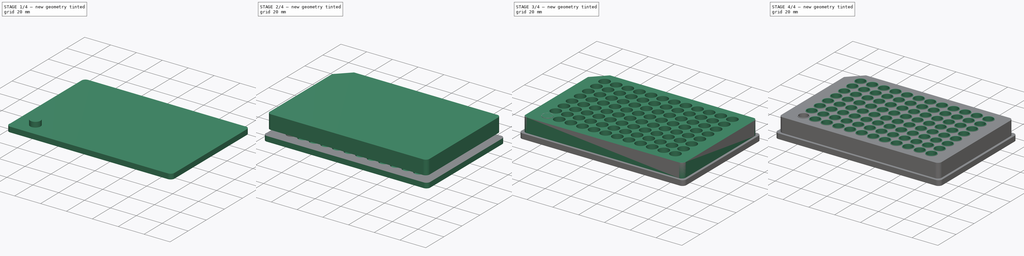
[diagram: build sequence overview — one tinted view per stage of 4, left to right]
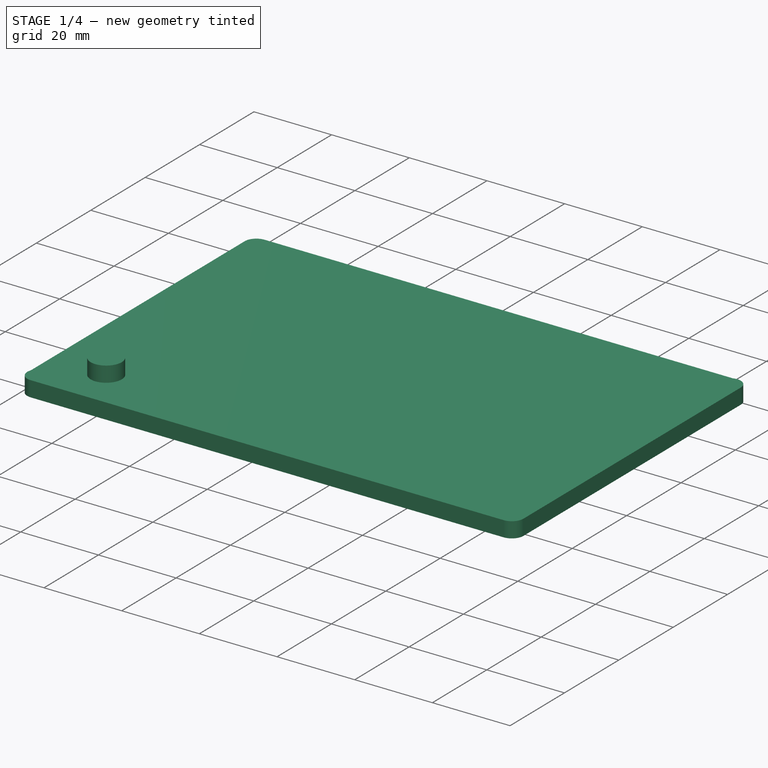
[diagram: stage 1 of 4 — iso view after this stage's code; geometry added in this stage tinted green]
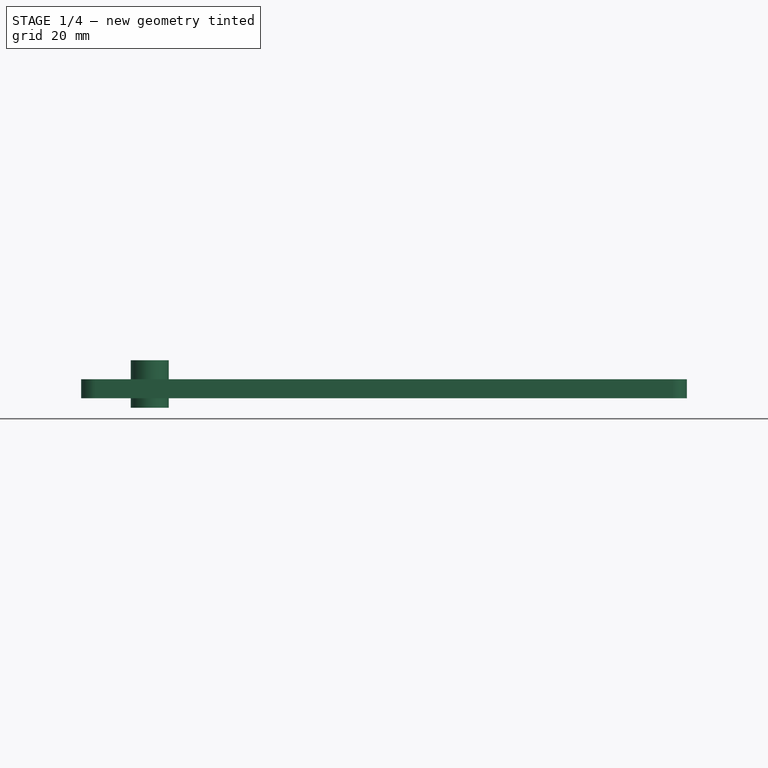
[diagram: stage 1 of 4 — front view after this stage's code; geometry added in this stage tinted green]
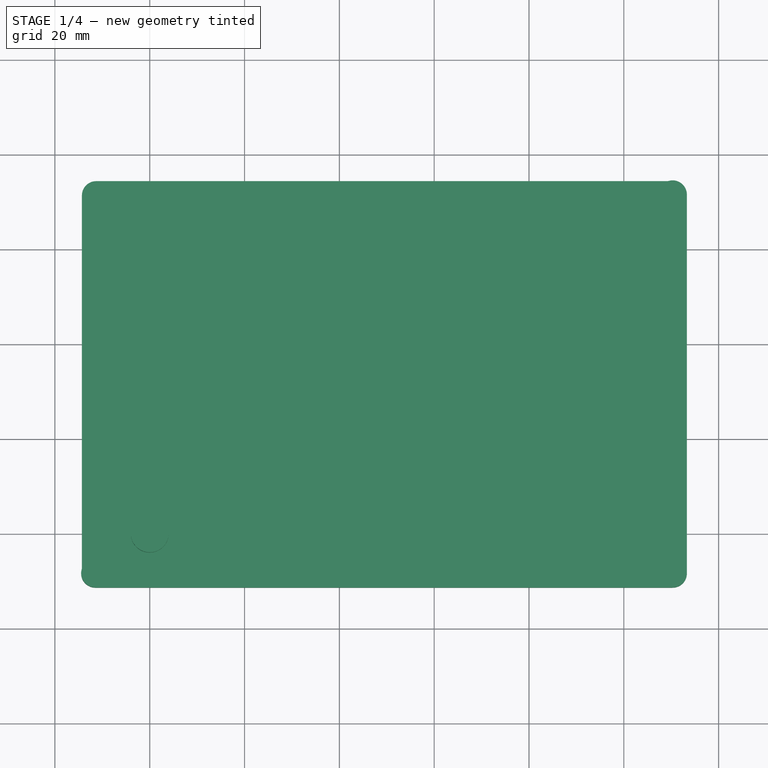
[diagram: stage 1 of 4 — top view after this stage's code; geometry added in this stage tinted green]
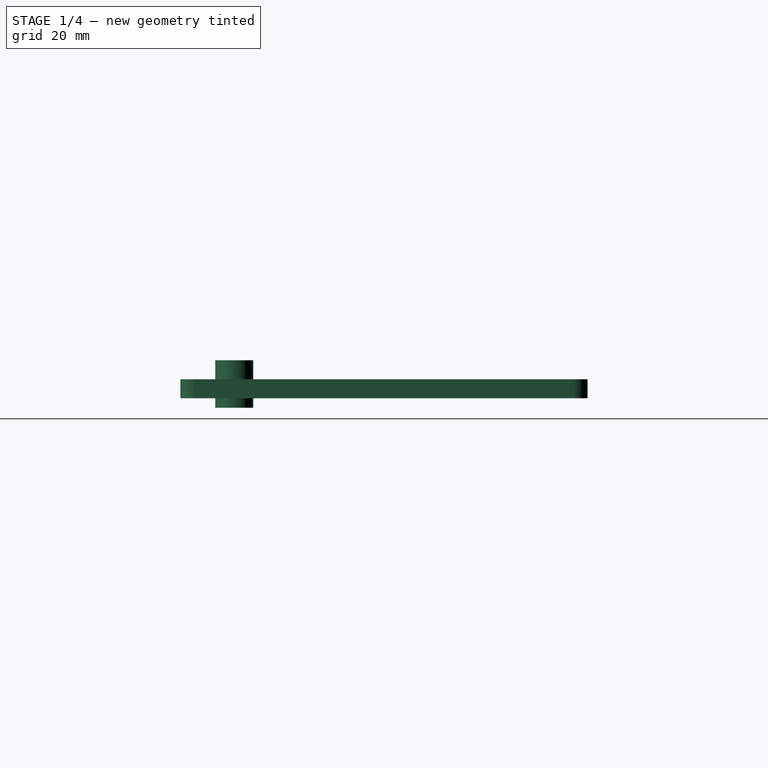
[diagram: stage 1 of 4 — right view after this stage's code; geometry added in this stage tinted green]
FCSTD DOCUMENT  (FreeCAD 0.20R29410 (Git))
Label: 96 well plate
License: All rights reserved
LicenseURL: http://en.wikipedia.org/wiki/All_rights_reserved
objects: Sketcher::SketchObject×4, Part::FeaturePython×4, PartDesign::Body×3, Part::Cylinder×3, Part::Cut×3, PartDesign::Pad×2, TechDraw::DrawSVGTemplate×2, TechDraw::DrawViewPart×2, TechDraw::DrawPage×2, PartDesign::AdditiveLoft×1, Part::Compound×1
note: 20 computed .brp shape members not serialized (recipe doc carries the construction recipe); baked Part::Feature solids carry a one-line shape summary decoded from their .brp

FEATURE [Sketcher::SketchObject] Sketch
  FullyConstrained = false
  MapMode = 5
  Support = -> [XY_Plane]
  sketch-geometry (25):
    g0: LineSegment StartX=0 StartY=0 StartZ=0 EndX=0 EndY=-11.36 EndZ=0
    g1: LineSegment StartX=0 StartY=0 StartZ=0 EndX=-14.3 EndY=0 EndZ=0
    g2: LineSegment StartX=0 StartY=-11.36 StartZ=0 EndX=-14.3 EndY=-11.36 EndZ=0
    g3: LineSegment StartX=-14.3 StartY=-11.36 StartZ=0 EndX=-14.3 EndY=0 EndZ=0
    g4: LineSegment StartX=-14.3 StartY=0 StartZ=0 EndX=-14.3 EndY=74.36 EndZ=0
    g5: LineSegment StartX=-14.3 StartY=74.36 StartZ=0 EndX=113.3 EndY=74.36 EndZ=0
    g6: LineSegment StartX=113.3 StartY=74.36 StartZ=0 EndX=113.3 EndY=-11.36 EndZ=0
    g7: LineSegment StartX=113.3 StartY=-11.36 StartZ=0 EndX=0 EndY=-11.36 EndZ=0
    g8: LineSegment StartX=0 StartY=0 StartZ=0 EndX=0 EndY=63 EndZ=0
    g9: LineSegment StartX=0 StartY=63 StartZ=0 EndX=99 EndY=63 EndZ=0
    g10: LineSegment StartX=99 StartY=63 StartZ=0 EndX=113.3 EndY=63 EndZ=0
    g11: LineSegment StartX=99 StartY=63 StartZ=0 EndX=99 EndY=74.36 EndZ=0
    g12: LineSegment StartX=-14.3 StartY=64.36 StartZ=0 EndX=-4.3 EndY=74.36 EndZ=0
    g13: LineSegment StartX=113.3 StartY=71.5303 StartZ=0 EndX=113.3 EndY=-8.36 EndZ=0
    g14: LineSegment StartX=110.3 StartY=-11.36 StartZ=0 EndX=-11.4703 EndY=-11.36 EndZ=0
    g15: ArcOfCircle CenterX=110.3 CenterY=71.5303 CenterZ=0 NormalX=0 NormalY=0 NormalZ=1 AngleXU=0 Radius=3 StartAngle=-9e-16 EndAngle=1.90934
    g16: GeomPoint X=113.3 Y=74.36 Z=0
    g17: ArcOfCircle CenterX=110.3 CenterY=-8.36 CenterZ=0 NormalX=0 NormalY=0 NormalZ=1 AngleXU=0 Radius=3 StartAngle=4.71239 EndAngle=6.28319
    g18: GeomPoint X=113.3 Y=-11.36 Z=0
    g19: ArcOfCircle CenterX=-11.4703 CenterY=-8.36 CenterZ=0 NormalX=0 NormalY=0 NormalZ=1 AngleXU=0 Radius=3 StartAngle=2.80305 EndAngle=4.71239
    g20: GeomPoint X=-14.3 Y=-11.36 Z=0
    g21: LineSegment StartX=109.304 StartY=74.36 StartZ=0 EndX=-11.3 EndY=74.36 EndZ=0
    g22: LineSegment StartX=-14.3 StartY=71.36 StartZ=0 EndX=-14.3 EndY=-7.36366 EndZ=0
    g23: ArcOfCircle CenterX=-11.3 CenterY=71.36 CenterZ=0 NormalX=0 NormalY=0 NormalZ=1 AngleXU=0 Radius=3 StartAngle=1.5708 EndAngle=3.14159
    g24: GeomPoint X=-14.3 Y=74.36 Z=0
  constraints (62):
    c: Coincident(g0,g-1)
    c: PointOnObject(g0,g-2)
    c: Coincident(g1,g0)
    c: PointOnObject(g1,g-1)
    c: DistanceX(g1,g1) = 14.3
    c: DistanceY(g0,g0) = 11.36
    c: Coincident(g2,g0)
    c: Horizontal(g2)
    c: Coincident(g3,g2)
    c: Coincident(g3,g1)
    c: Vertical(g3)
    c: Coincident(g4,g1)
    c: Vertical(g4)
    c: Coincident(g5,g4)
    c: Horizontal(g5)
    c: Coincident(g6,g5)
    c: Vertical(g6)
    c: Coincident(g7,g6)
    c: Coincident(g7,g0)
    c: Horizontal(g7)
    c: Coincident(g8,g0)
    c: PointOnObject(g8,g-2)
    c: DistanceY(g8,g8) = 63
    c: Coincident(g9,g8)
    c: Horizontal(g9)
    c: DistanceX(g9,g9) = 99
    c: Coincident(g10,g9)
    c: PointOnObject(g10,g6)
    c: Horizontal(g10)
    c: Coincident(g11,g9)
    c: PointOnObject(g11,g5)
    c: Vertical(g11)
    c: Equal(g11,g0)
    c: Equal(g10,g1)
    c: PointOnObject(g12,g4)
    c: PointOnObject(g12,g5)
    c: Angle(g12,g5) = 2.35619
    c: DistanceX(g4,g12) = 10
    c: Coincident(g16,g5)
    c: Coincident(g18,g6)
    c: Coincident(g20,g2)
    c: PointOnObject(g16,g13)
    c: Tangent(g13,g15) = 1.5708
    c: PointOnObject(g18,g13)
    c: PointOnObject(g18,g14)
    c: Tangent(g13,g17) = 1.5708
    c: Tangent(g14,g17) = 1.5708
    c: PointOnObject(g20,g14)
    c: Tangent(g14,g19) = 1.5708
    c: Equal(g15,g17)
    c: Equal(g17,g19)
    c: Radius(g15) = 3
    c: Coincident(g21,g15)
    c: Coincident(g24,g4)
    c: Horizontal(g21)
    c: Coincident(g22,g19)
    c: Vertical(g22)
    c: PointOnObject(g24,g22)
    c: PointOnObject(g24,g21)
    c: Tangent(g22,g23) = -1.5708
    c: Tangent(g21,g23) = -1.5708
    c: Equal(g23,g15)
FEATURE [PartDesign::Pad] Pad
  Direction = (0,0,1)
  Length = 4
  Length2 = 10
  Profile = -> Sketch
  ReferenceAxis = -> Sketch [N_Axis]
  Type = 0
FEATURE [PartDesign::Body] Body  label="Plate base"
  Group = -> [Sketch,Pad]
  Origin = -> Origin
  Placement = pos=(0,0,-4) rot=(0,0,1;0rad)
  Tip = -> Pad
FEATURE [Part::Cylinder] Cylinder
  Angle = 360
  AttacherType = Attacher::AttachEngine3D
  FirstAngle = 0
  Height = 10
  Placement = pos=(0,0,-2) rot=(0,0,1;0rad)
  Radius = 4
  SecondAngle = 0
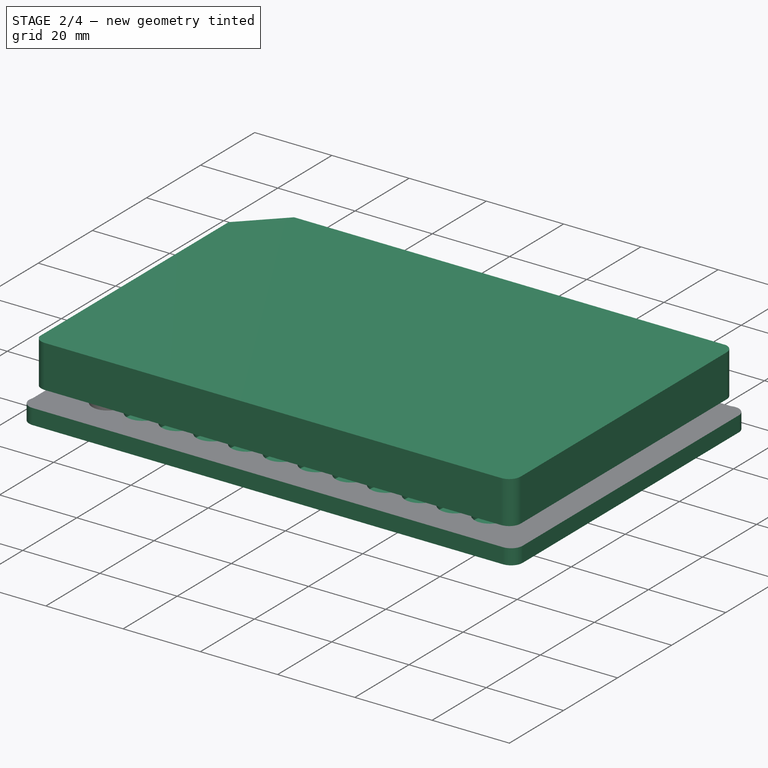
[diagram: stage 2 of 4 — iso view after this stage's code; geometry added in this stage tinted green]
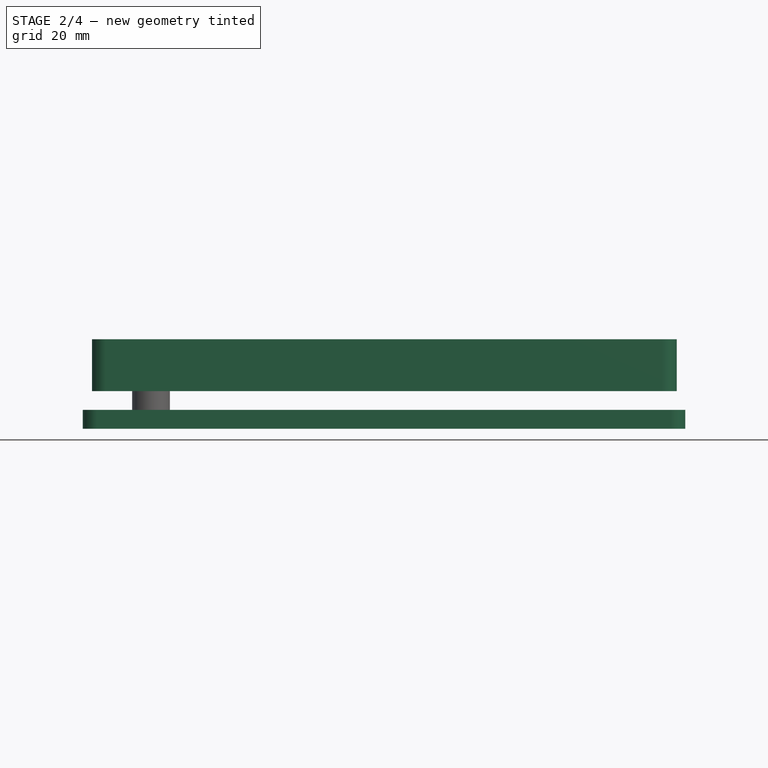
[diagram: stage 2 of 4 — front view after this stage's code; geometry added in this stage tinted green]
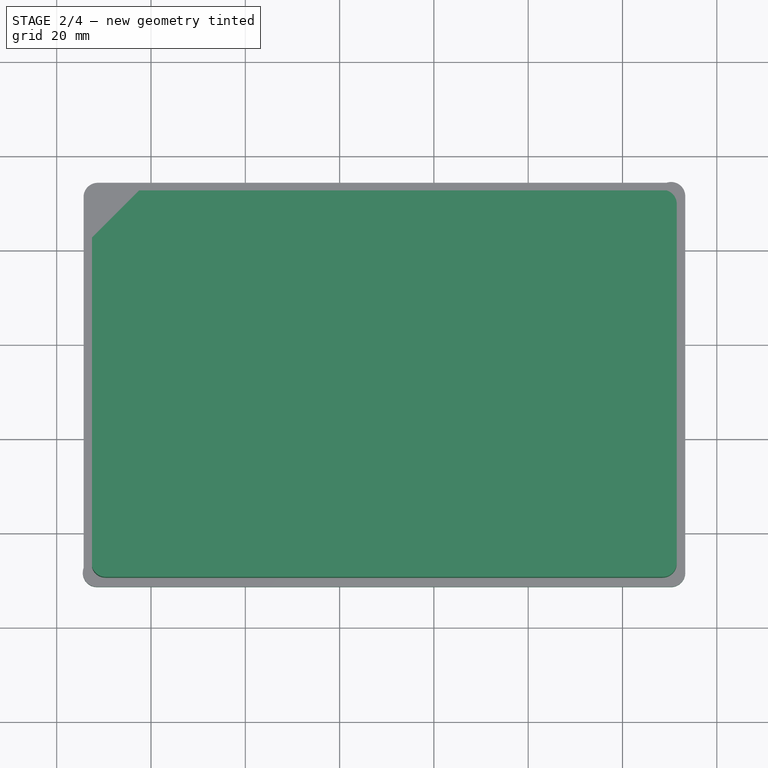
[diagram: stage 2 of 4 — top view after this stage's code; geometry added in this stage tinted green]
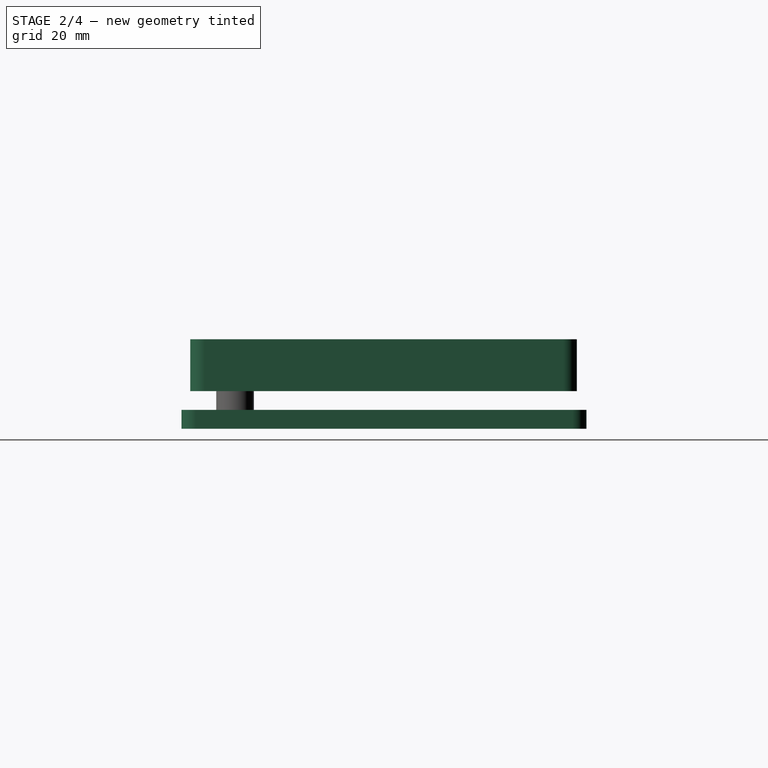
[diagram: stage 2 of 4 — right view after this stage's code; geometry added in this stage tinted green]
FEATURE [Part::FeaturePython] Array  # Draft array (typed FeaturePython)
  AlwaysSyncPlacement = false
  Angle = 360
  ArrayType = 0
  Axis = (0,0,1)
  Base = -> Cylinder
  Center = (0,0,0)
  Count = 96
  ExpandArray = false
  Fuse = false
  IntervalAxis = (0,0,0)
  IntervalX = (9,0,0)
  IntervalY = (0,9,0)
  IntervalZ = (0,0,100)
  NumberCircles = 3
  NumberPolar = 5
  NumberX = 12
  NumberY = 8
  NumberZ = 1
  PlacementList = 96 placements: [(0,0,-2),(0,9,-2),(0,18,-2),(0,27,-2),(0,36,-2),(0,45,-2),(0,54,-2),(0,63,-2),(9,0,-2),(9,9,-2),(9,18,-2),(9,27,-2),(9,36,-2),(9,45,-2),(9,54,-2),(9,63,-2),(18,0,-2),(18,9,-2),(18,18,-2),(18,27,-2),(18,36,-2),(18,45,-2),(18,54,-2),(18,63,-2),(27,0,-2),(27,9,-2),(27,18,-2),(27,27,-2),(27,36,-2),(27,45,-2),(27,54,-2),(27,63,-2),(36,0,-2),(36,9,-2),(36,18,-2),(36,27,-2),(36,36,-2),(36,45,-2),+58 more]
  RadialDistance = 50
  ScaleList = (96) [(1,1,1),(1,1,1),(1,1,1),(1,1,1),(1,1,1),(1,1,1),(1,1,1),(1,1,1),(1,1,1),(1,1,1),(1,1,1),(1,1,1),(1,1,1),(1,1,1),(1,1,1),(1,1,1),(1,1,1),(1,1,1),+78 more]
  Symmetry = 1
  TangentialDistance = 25
FEATURE [Sketcher::SketchObject] Sketch018
  AttachmentOffset = pos=(0,0,4) rot=(0,0,1;0rad)
  FullyConstrained = false
  MapMode = 5
  Placement = pos=(0,0,4) rot=(0,0,1;0rad)
  Support = -> [XY_Plane012]
  sketch-geometry (25):
    g0: LineSegment StartX=0 StartY=0 StartZ=0 EndX=0 EndY=-9.5 EndZ=0
    g1: LineSegment StartX=0 StartY=0 StartZ=0 EndX=-12.5 EndY=0 EndZ=0
    g2: LineSegment StartX=0 StartY=-9.5 StartZ=0 EndX=-12.5 EndY=-9.5 EndZ=0
    g3: LineSegment StartX=-12.5 StartY=-9.5 StartZ=0 EndX=-12.5 EndY=0 EndZ=0
    g4: LineSegment StartX=-12.5 StartY=0 StartZ=0 EndX=-12.5 EndY=72.5 EndZ=0
    g5: LineSegment StartX=-12.5 StartY=72.5 StartZ=0 EndX=111.5 EndY=72.5 EndZ=0
    g6: LineSegment StartX=111.5 StartY=72.5 StartZ=0 EndX=111.5 EndY=-9.5 EndZ=0
    g7: LineSegment StartX=111.5 StartY=-9.5 StartZ=0 EndX=0 EndY=-9.5 EndZ=0
    g8: LineSegment StartX=0 StartY=0 StartZ=0 EndX=0 EndY=63 EndZ=0
    g9: LineSegment StartX=0 StartY=63 StartZ=0 EndX=99 EndY=63 EndZ=0
    g10: LineSegment StartX=99 StartY=63 StartZ=0 EndX=111.5 EndY=63 EndZ=0
    g11: LineSegment StartX=99 StartY=63 StartZ=0 EndX=99 EndY=72.5 EndZ=0
    g12: LineSegment StartX=-12.5 StartY=62.5 StartZ=0 EndX=-2.5 EndY=72.5 EndZ=0
    g13: LineSegment StartX=111.5 StartY=69.6097 StartZ=0 EndX=111.5 EndY=-6.5 EndZ=0
    g14: LineSegment StartX=108.5 StartY=-9.5 StartZ=0 EndX=-9.62701 EndY=-9.5 EndZ=0
    g15: ArcOfCircle CenterX=108.5 CenterY=69.6097 CenterZ=0 NormalX=0 NormalY=0 NormalZ=1 AngleXU=0 Radius=3 StartAngle=2.1e-15 EndAngle=1.2996
    g16: GeomPoint X=111.5 Y=72.5 Z=0
    g17: ArcOfCircle CenterX=108.5 CenterY=-6.5 CenterZ=0 NormalX=0 NormalY=0 NormalZ=1 AngleXU=0 Radius=3 StartAngle=4.71239 EndAngle=6.28319
    g18: GeomPoint X=111.5 Y=-9.5 Z=0
    g19: ArcOfCircle CenterX=-9.62701 CenterY=-6.5 CenterZ=0 NormalX=0 NormalY=0 NormalZ=1 AngleXU=0 Radius=3 StartAngle=3.43362 EndAngle=4.71239
    g20: GeomPoint X=-12.5 Y=-9.5 Z=0
    g21: GeomPoint X=-12.5 Y=72.5 Z=0
    g22: LineSegment StartX=-2.5 StartY=72.5 StartZ=0 EndX=-12.5 EndY=62.5 EndZ=0
    g23: LineSegment StartX=-2.5 StartY=72.5 StartZ=0 EndX=109.304 EndY=72.5 EndZ=0
    g24: LineSegment StartX=-12.5 StartY=-7.36368 StartZ=0 EndX=-12.5 EndY=62.5 EndZ=0
  constraints (61):
    c: Coincident(g0,g-1)
    c: PointOnObject(g0,g-2)
    c: Coincident(g1,g0)
    c: PointOnObject(g1,g-1)
    c: DistanceX(g1,g1) = 12.5
    c: DistanceY(g0,g0) = 9.5
    c: Coincident(g2,g0)
    c: Horizontal(g2)
    c: Coincident(g3,g2)
    c: Coincident(g3,g1)
    c: Vertical(g3)
    c: Coincident(g4,g1)
    c: Vertical(g4)
    c: Coincident(g5,g4)
    c: Horizontal(g5)
    c: Coincident(g6,g5)
    c: Vertical(g6)
    c: Coincident(g7,g6)
    c: Coincident(g7,g0)
    c: Horizontal(g7)
    c: Coincident(g8,g0)
    c: PointOnObject(g8,g-2)
    c: DistanceY(g8,g8) = 63
    c: Coincident(g9,g8)
    c: Horizontal(g9)
    c: DistanceX(g9,g9) = 99
    c: Coincident(g10,g9)
    c: PointOnObject(g10,g6)
    c: Horizontal(g10)
    c: Coincident(g11,g9)
    c: PointOnObject(g11,g5)
    c: Vertical(g11)
    c: Equal(g11,g0)
    c: Equal(g10,g1)
    c: PointOnObject(g12,g4)
    c: PointOnObject(g12,g5)
    c: Angle(g12,g5) = 2.35619
    c: DistanceX(g4,g12) = 10
    c: Coincident(g16,g5)
    c: Coincident(g18,g6)
    c: Coincident(g20,g2)
    c: PointOnObject(g16,g13)
    c: Tangent(g13,g15) = 1.5708
    c: PointOnObject(g18,g13)
    c: PointOnObject(g18,g14)
    c: Tangent(g13,g17) = 1.5708
    c: Tangent(g14,g17) = 1.5708
    c: PointOnObject(g20,g14)
    c: Tangent(g14,g19) = 1.5708
    c: Equal(g15,g17)
    c: Equal(g17,g19)
    c: Radius(g15) = 3
    c: Coincident(g21,g4)
    c: Coincident(g22,g12)
    c: Coincident(g22,g12)
    c: Coincident(g23,g22)
    c: Coincident(g23,g15)
    c: Horizontal(g23)
    c: Coincident(g24,g19)
    c: Coincident(g24,g22)
    c: Vertical(g24)
FEATURE [PartDesign::Pad] Pad001
  Direction = (0,0,1)
  Length = 11
  Length2 = 10
  Profile = -> Sketch018
  ReferenceAxis = -> Sketch018 [N_Axis]
  Type = 0
FEATURE [PartDesign::Body] Body012  label="Plate base001"
  Group = -> [Sketch018,Pad001]
  Origin = -> Origin012
  Placement = pos=(0,0,-4) rot=(0,0,1;0rad)
  Tip = -> Pad001
FEATURE [Part::Cylinder] Cylinder003
  Angle = 360
  AttacherType = Attacher::AttachEngine3D
  FirstAngle = 0
  Height = 15
  Placement = pos=(0,0,-2) rot=(0,0,1;0rad)
  Radius = 4
  SecondAngle = 0
FEATURE [Part::Cut] Cut004
  Base = -> Body
  Tool = -> Array
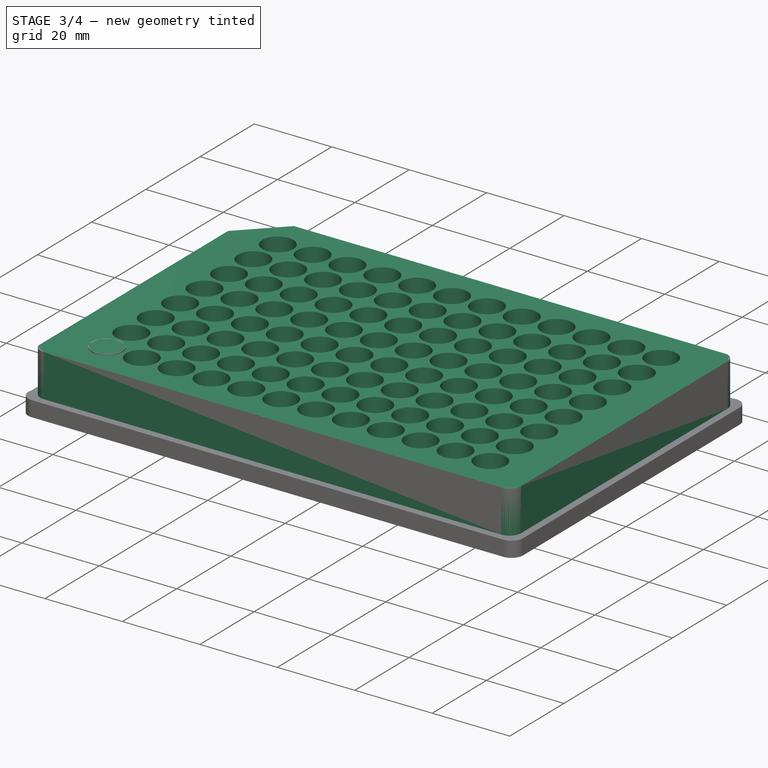
[diagram: stage 3 of 4 — iso view after this stage's code; geometry added in this stage tinted green]
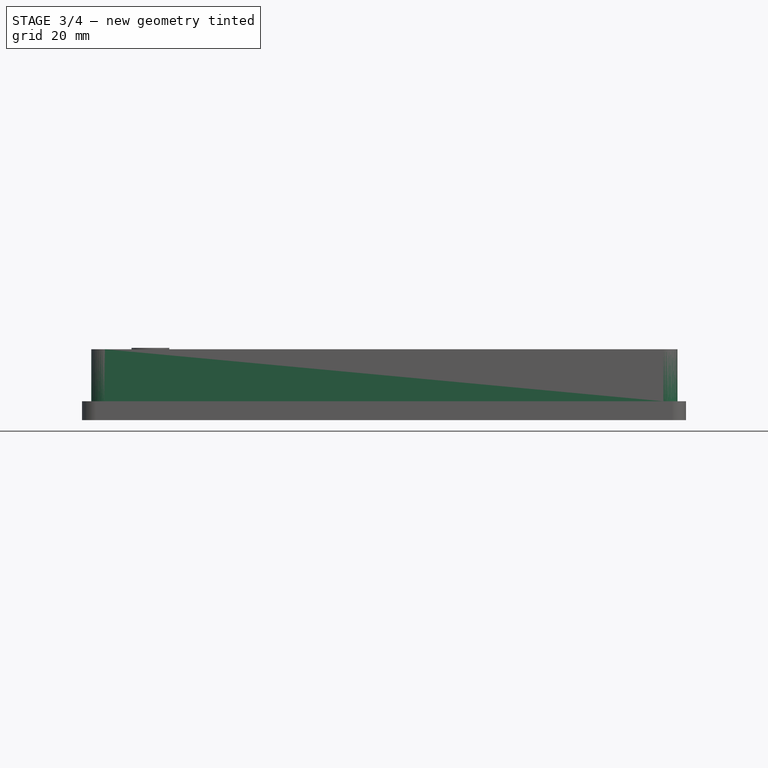
[diagram: stage 3 of 4 — front view after this stage's code; geometry added in this stage tinted green]
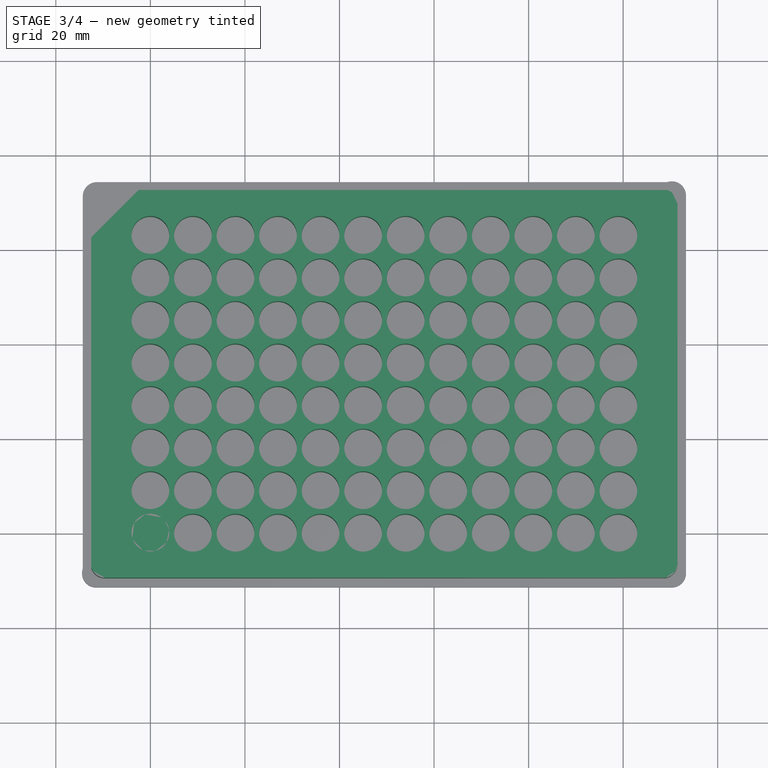
[diagram: stage 3 of 4 — top view after this stage's code; geometry added in this stage tinted green]
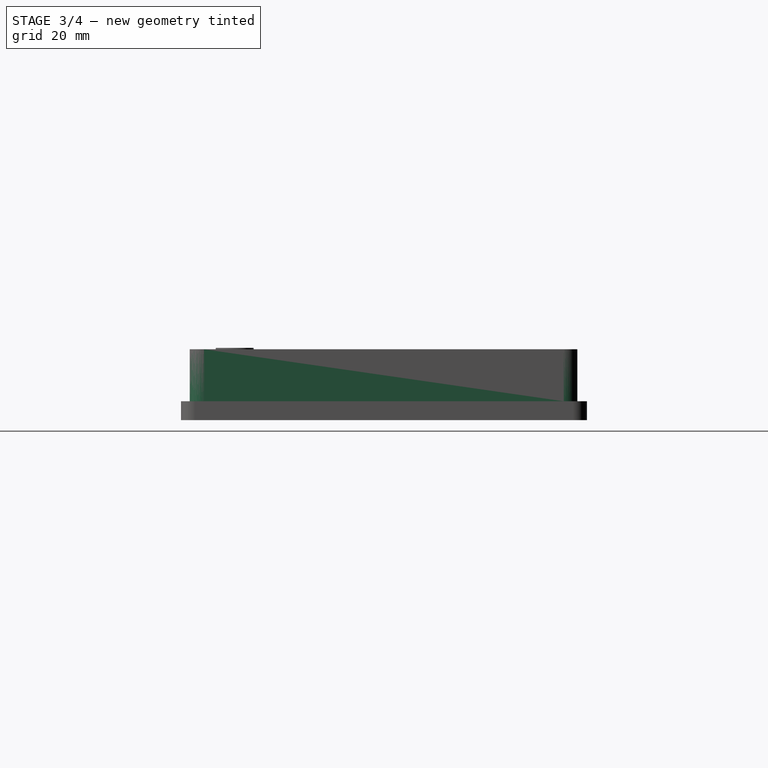
[diagram: stage 3 of 4 — right view after this stage's code; geometry added in this stage tinted green]
FEATURE [Sketcher::SketchObject] Sketch016  label="D1"
  AttachmentOffset = pos=(0,0,11.3) rot=(0,0,1;0rad)
  FullyConstrained = true
  MapMode = 5
  Placement = pos=(0,0,11.3) rot=(0,0,1;0rad)
  Support = -> [XY_Plane011]
  sketch-geometry (1):
    g0: Circle CenterX=0 CenterY=0 CenterZ=0 NormalX=0 NormalY=0 NormalZ=1 AngleXU=0 Radius=3.5
  constraints (2):
    c: Coincident(g0,g-1)
    c: Diameter(g0) = 7
FEATURE [Sketcher::SketchObject] Sketch017  label="D2"
  FullyConstrained = true
  MapMode = 5
  Support = -> [XY_Plane011]
  sketch-geometry (1):
    g0: Circle CenterX=0 CenterY=0 CenterZ=0 NormalX=0 NormalY=0 NormalZ=1 AngleXU=0 Radius=3.4
  constraints (2):
    c: Coincident(g0,g-1)
    c: Diameter(g0) = 6.8
FEATURE [PartDesign::AdditiveLoft] AdditiveLoft005
  Closed = false
  Profile = -> Sketch017
  Ruled = false
  Sections = -> [Sketch016]
FEATURE [PartDesign::Body] Body011  label="Well from technical data"
  Group = -> [Sketch016,Sketch017,AdditiveLoft005]
  Origin = -> Origin011
  Tip = -> AdditiveLoft005
FEATURE [Part::FeaturePython] Array008  label="Well hole array TD"  # Draft array (typed FeaturePython)
  AlwaysSyncPlacement = false
  Angle = 360
  ArrayType = 0
  Axis = (0,0,1)
  Base = -> Body011
  Center = (0,0,0)
  Count = 96
  ExpandArray = false
  Fuse = false
  IntervalAxis = (0,0,0)
  IntervalX = (9,0,0)
  IntervalY = (0,9,0)
  IntervalZ = (0,0,100)
  NumberCircles = 3
  NumberPolar = 5
  NumberX = 12
  NumberY = 8
  NumberZ = 1
  PlacementList = 96 placements: [(0,0,0),(0,9,0),(0,18,0),(0,27,0),(0,36,0),(0,45,0),(0,54,0),(0,63,0),(9,0,0),(9,9,0),(9,18,0),(9,27,0),(9,36,0),(9,45,0),(9,54,0),(9,63,0),(18,0,0),(18,9,0),(18,18,0),(18,27,0),(18,36,0),(18,45,0),(18,54,0),(18,63,0),(27,0,0),(27,9,0),(27,18,0),(27,27,0),(27,36,0),(27,45,0),(27,54,0),(27,63,0),(36,0,0),(36,9,0),(36,18,0),(36,27,0),(36,36,0),(36,45,0),(36,54,0),(36,63,0),(45,0,0),(45,9,0),+54 more]
  RadialDistance = 50
  ScaleList = (96) [(1,1,1),(1,1,1),(1,1,1),(1,1,1),(1,1,1),(1,1,1),(1,1,1),(1,1,1),(1,1,1),(1,1,1),(1,1,1),(1,1,1),(1,1,1),(1,1,1),(1,1,1),(1,1,1),(1,1,1),(1,1,1),+78 more]
  Symmetry = 1
  TangentialDistance = 25
FEATURE [Part::Cylinder] Cylinder002  label="Well walls"
  Angle = 360
  AttacherType = Attacher::AttachEngine3D
  FirstAngle = 0
  Height = 12.7
  Placement = pos=(0,0,-1.4) rot=(0,0,1;0rad)
  Radius = 4
  SecondAngle = 0
FEATURE [Part::FeaturePython] Array010  # Draft array (typed FeaturePython)
  AlwaysSyncPlacement = false
  Angle = 360
  ArrayType = 0
  Axis = (0,0,1)
  Base = -> Cylinder003
  Center = (0,0,0)
  Count = 96
  ExpandArray = false
  Fuse = false
  IntervalAxis = (0,0,0)
  IntervalX = (9,0,0)
  IntervalY = (0,9,0)
  IntervalZ = (0,0,100)
  NumberCircles = 3
  NumberPolar = 5
  NumberX = 12
  NumberY = 8
  NumberZ = 1
  PlacementList = 96 placements: [(0,0,-2),(0,9,-2),(0,18,-2),(0,27,-2),(0,36,-2),(0,45,-2),(0,54,-2),(0,63,-2),(9,0,-2),(9,9,-2),(9,18,-2),(9,27,-2),(9,36,-2),(9,45,-2),(9,54,-2),(9,63,-2),(18,0,-2),(18,9,-2),(18,18,-2),(18,27,-2),(18,36,-2),(18,45,-2),(18,54,-2),(18,63,-2),(27,0,-2),(27,9,-2),(27,18,-2),(27,27,-2),(27,36,-2),(27,45,-2),(27,54,-2),(27,63,-2),(36,0,-2),(36,9,-2),(36,18,-2),(36,27,-2),(36,36,-2),(36,45,-2),+58 more]
  RadialDistance = 50
  ScaleList = (96) [(1,1,1),(1,1,1),(1,1,1),(1,1,1),(1,1,1),(1,1,1),(1,1,1),(1,1,1),(1,1,1),(1,1,1),(1,1,1),(1,1,1),(1,1,1),(1,1,1),(1,1,1),(1,1,1),(1,1,1),(1,1,1),+78 more]
  Symmetry = 1
  TangentialDistance = 25
FEATURE [Part::Cut] Cut
  Base = -> Body012
  Tool = -> Array010
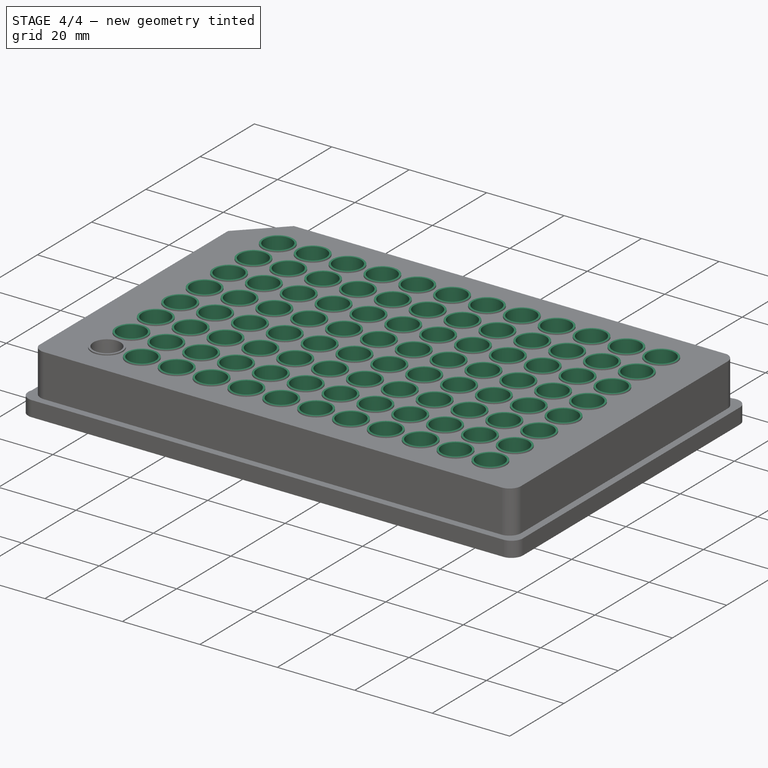
[diagram: stage 4 of 4 — iso view after this stage's code; geometry added in this stage tinted green]
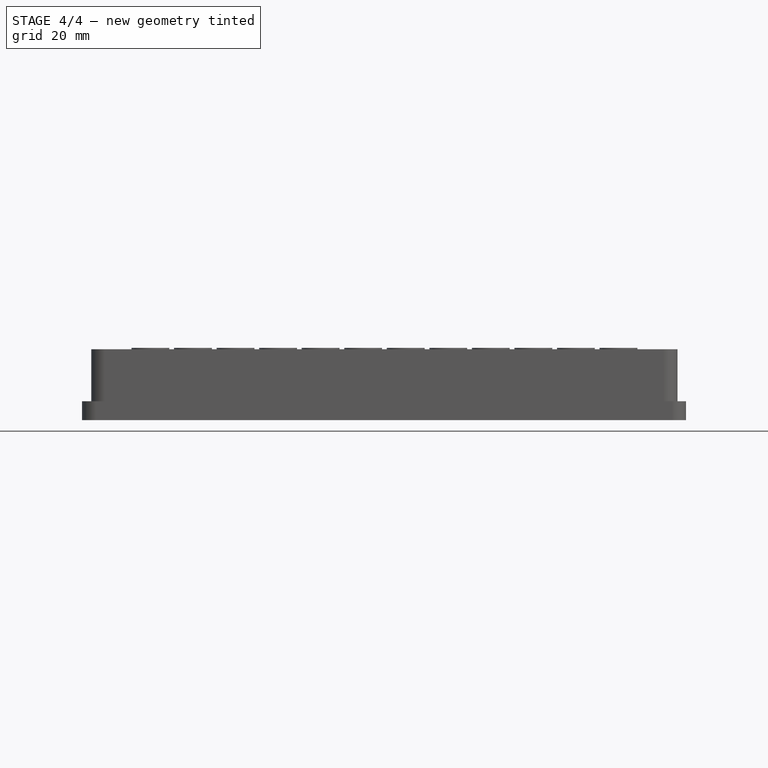
[diagram: stage 4 of 4 — front view after this stage's code; geometry added in this stage tinted green]
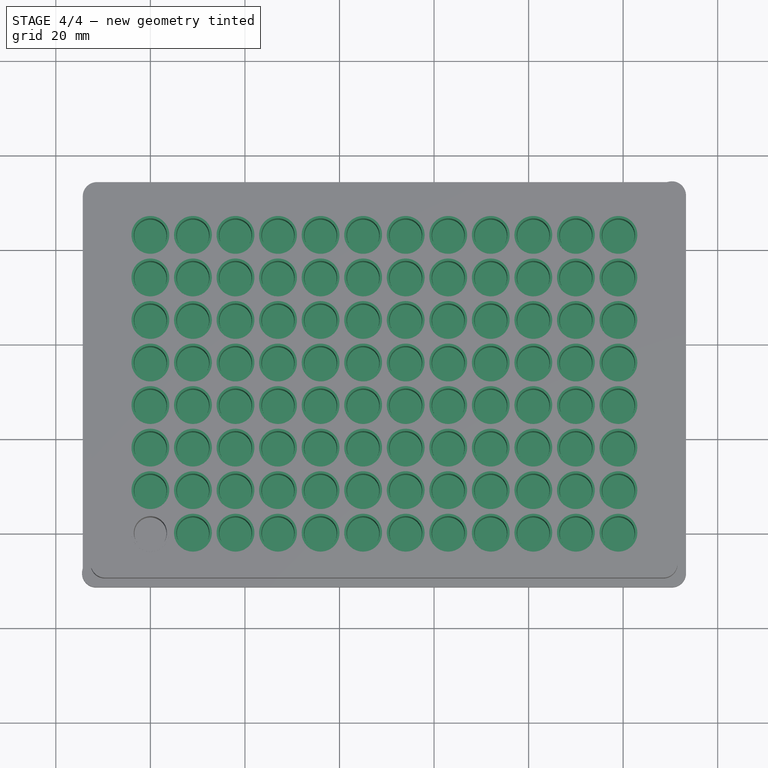
[diagram: stage 4 of 4 — top view after this stage's code; geometry added in this stage tinted green]
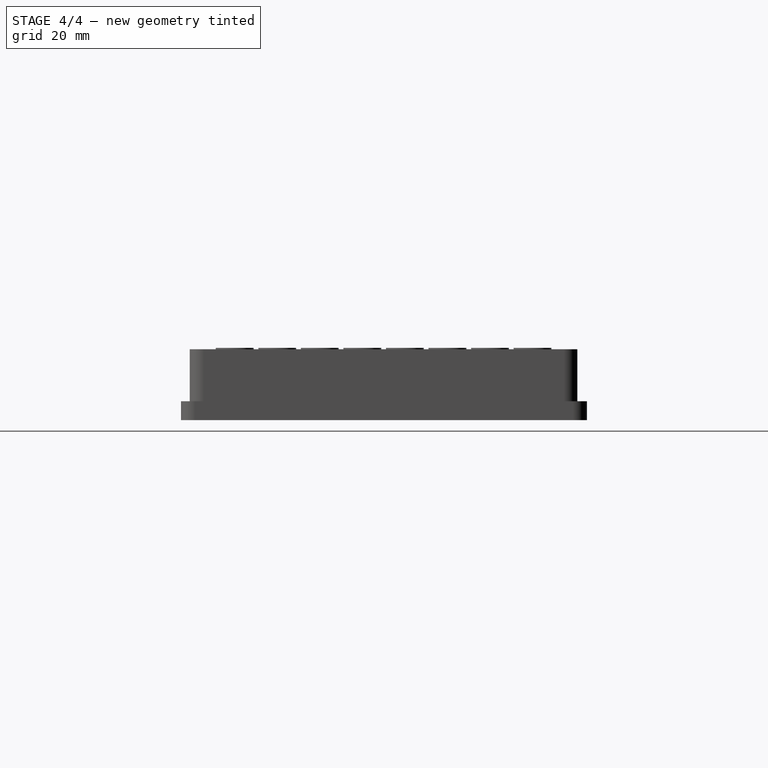
[diagram: stage 4 of 4 — right view after this stage's code; geometry added in this stage tinted green]
FEATURE [Part::FeaturePython] Array009  label="Well walls array"  # Draft array (typed FeaturePython)
  AlwaysSyncPlacement = false
  Angle = 360
  ArrayType = 0
  Axis = (0,0,1)
  Base = -> Cylinder002
  Center = (0,0,0)
  Count = 96
  ExpandArray = false
  Fuse = false
  IntervalAxis = (0,0,0)
  IntervalX = (9,0,0)
  IntervalY = (0,9,0)
  IntervalZ = (0,0,100)
  NumberCircles = 3
  NumberPolar = 5
  NumberX = 12
  NumberY = 8
  NumberZ = 1
  PlacementList = 96 placements: [(0,0,-1.4),(0,9,-1.4),(0,18,-1.4),(0,27,-1.4),(0,36,-1.4),(0,45,-1.4),(0,54,-1.4),(0,63,-1.4),(9,0,-1.4),(9,9,-1.4),(9,18,-1.4),(9,27,-1.4),(9,36,-1.4),(9,45,-1.4),(9,54,-1.4),(9,63,-1.4),(18,0,-1.4),(18,9,-1.4),(18,18,-1.4),(18,27,-1.4),(18,36,-1.4),(18,45,-1.4),(18,54,-1.4),(18,63,-1.4),(27,0,-1.4),(27,9,-1.4),(27,18,-1.4),(27,27,-1.4),(27,36,-1.4),(27,45,-1.4),(27,54,-1.4),(27,63,-1.4),+64 more]
  RadialDistance = 50
  ScaleList = (96) [(1,1,1),(1,1,1),(1,1,1),(1,1,1),(1,1,1),(1,1,1),(1,1,1),(1,1,1),(1,1,1),(1,1,1),(1,1,1),(1,1,1),(1,1,1),(1,1,1),(1,1,1),(1,1,1),(1,1,1),(1,1,1),+78 more]
  Symmetry = 1
  TangentialDistance = 25
FEATURE [Part::Cut] Cut003  label="Wells from TD"
  Base = -> Array009
  Tool = -> Array008
FEATURE [Part::Compound] Compound  label="96 well plate"
  Links = -> [Cut004,Cut,Cut003]
FEATURE [TechDraw::DrawSVGTemplate] Template
  Height = 210
  Orientation = 1
  Width = 297
FEATURE [TechDraw::DrawViewPart] View
  CoarseView = false
  Direction = (0,0,1)
  Focus = 100
  HardHidden = false
  IsoCount = 0
  IsoHidden = false
  IsoVisible = false
  LockPosition = false
  Perspective = false
  Rotation = 0
  ScaleType = 0
  SeamHidden = false
  SeamVisible = true
  SmoothHidden = false
  SmoothVisible = true
  Source = -> [Compound]
  X = 84.3511
  XDirection = (1,0,0)
  Y = 141.383
FEATURE [TechDraw::DrawPage] Page
  KeepUpdated = true
  NextBalloonIndex = 1
  ProjectionType = 0
  Template = -> Template
  Views = -> [View]
FEATURE [TechDraw::DrawSVGTemplate] Template001
  Height = 210
  Orientation = 1
  Width = 297
FEATURE [TechDraw::DrawViewPart] View001
  CoarseView = false
  Direction = (0.577,-0.577,0.577)
  Focus = 100
  HardHidden = false
  IsoCount = 0
  IsoHidden = false
  IsoVisible = false
  LockPosition = false
  Perspective = false
  Rotation = 0
  ScaleType = 0
  SeamHidden = false
  SeamVisible = true
  SmoothHidden = false
  SmoothVisible = true
  Source = -> [Compound]
  X = 148.5
  XDirection = (0.707,0.707,0)
  Y = 105
FEATURE [TechDraw::DrawPage] Page001
  KeepUpdated = true
  NextBalloonIndex = 1
  ProjectionType = 0
  Template = -> Template001
  Views = -> [View001]
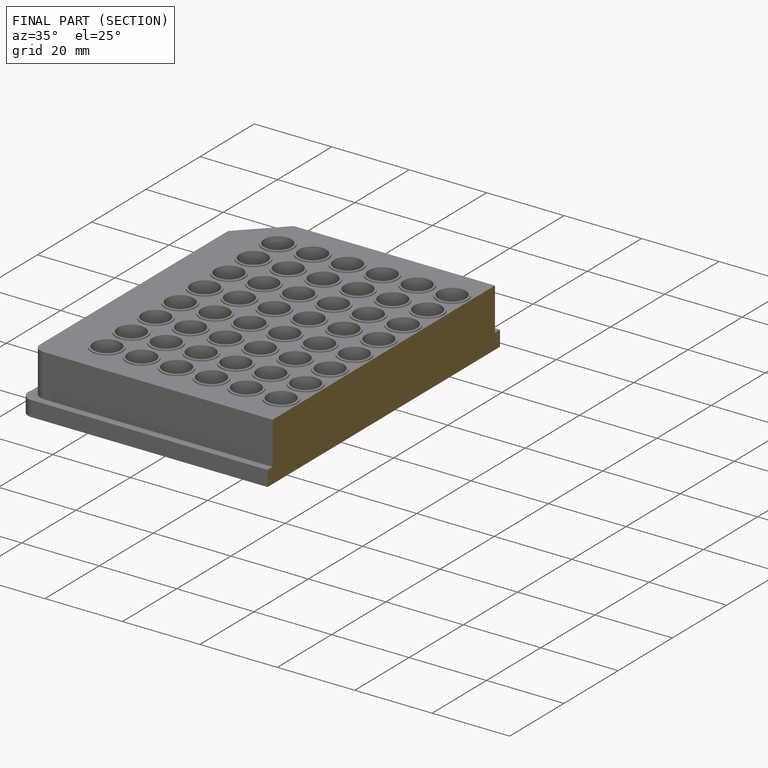
[diagram: finished part — half-section view (interior)]
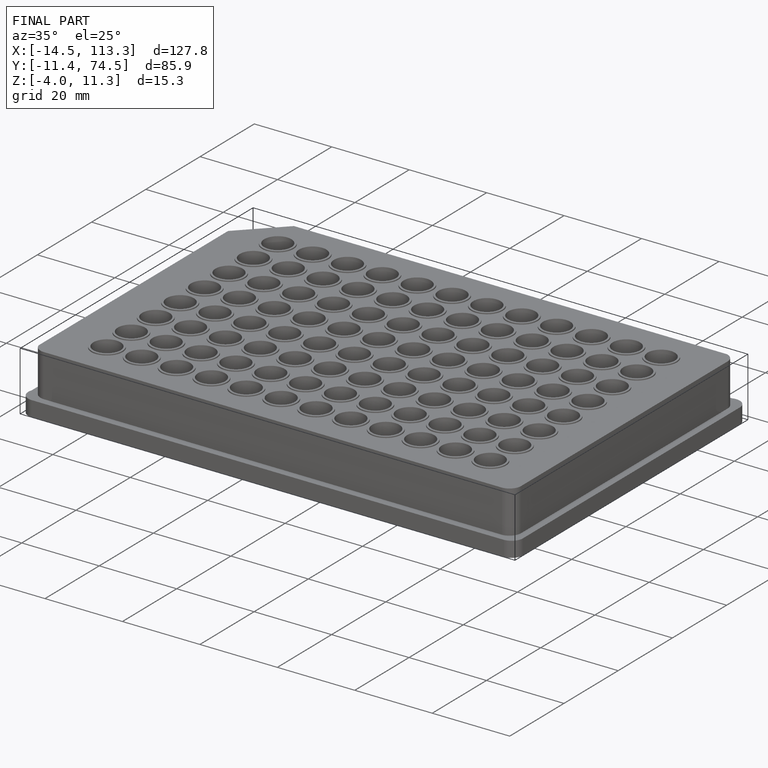
[diagram: finished part — iso view with bounding-box wireframe]
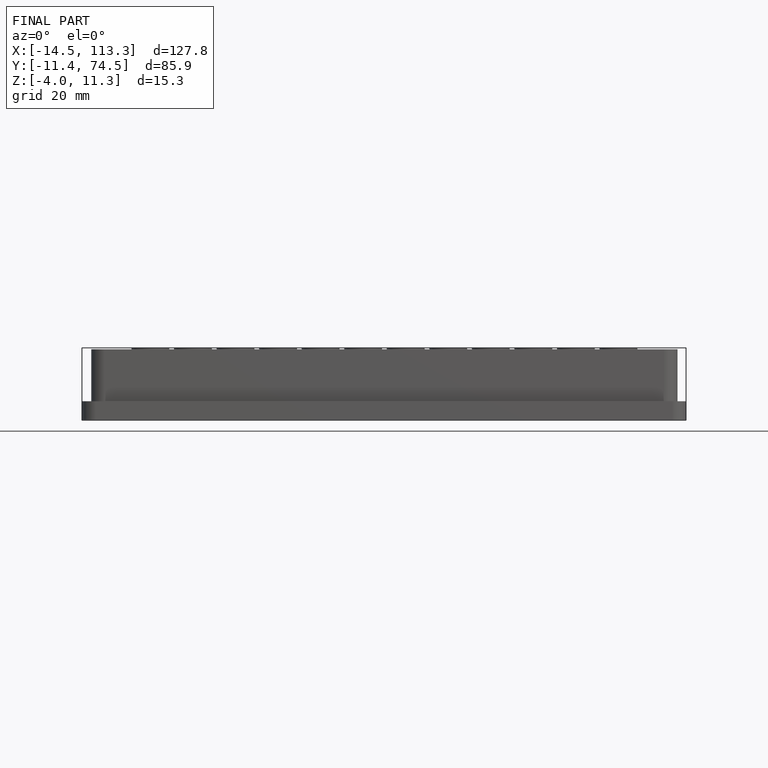
[diagram: finished part — front view with bounding-box wireframe]
